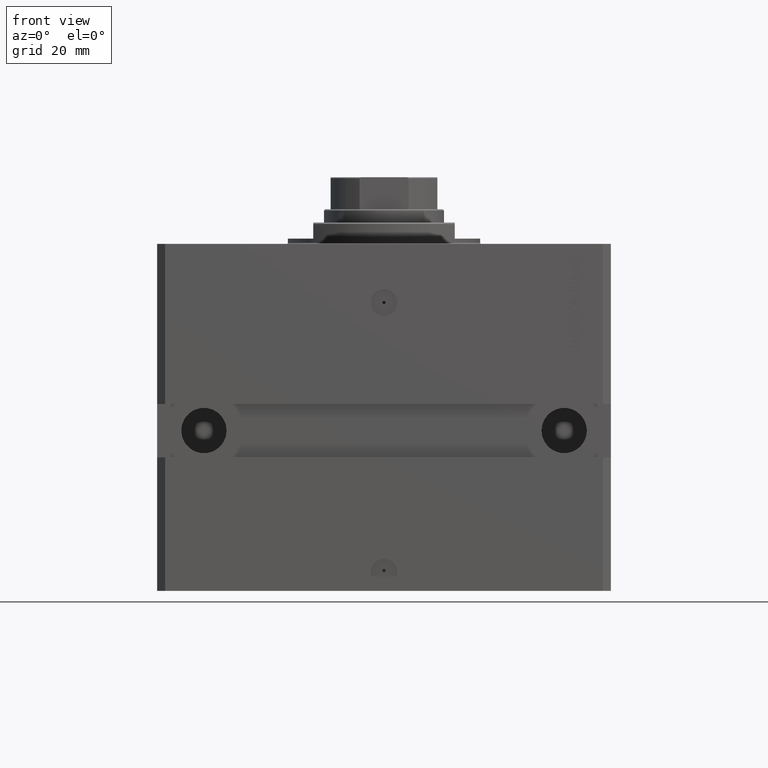
[diagram: clean part render]
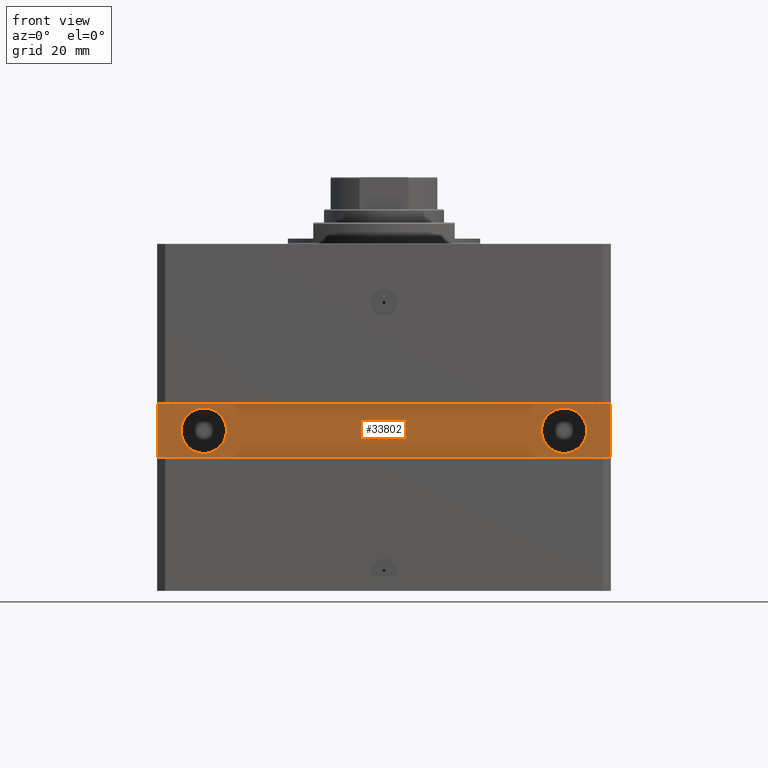
[diagram: same view with one face highlighted and labeled with its STEP entity id]
A machine part, front view. The second image highlights one B-rep face of the part: STEP entity #33802.
In plain terms, the highlighted planar face has unit normal (0, -1, 0).
Its self-contained STEP definition (entity closure, byte-faithful):
#497 = EDGE_CURVE ( 'NONE', #9817, #36663, #9129, .T. ) ;
#593 = CIRCLE ( 'NONE', #19380, 8.499999999999992895 ) ;
#1431 = CIRCLE ( 'NONE', #12387, 8.500000000000000000 ) ;
#1476 = ORIENTED_EDGE ( 'NONE', *, *, #34533, .T. ) ;
#2795 = EDGE_LOOP ( 'NONE', ( #27452, #44176 ) ) ;
#3204 = DIRECTION ( 'NONE',  ( 1.000000000000000000, 1.632680918566406300E-16, 0.000000000000000000 ) ) ;
#3458 = CARTESIAN_POINT ( 'NONE',  ( -75.99999999999997158, -65.00000000000001421, -70.00000000000001421 ) ) ;
#5183 = VECTOR ( 'NONE', #16247, 1000.000000000000000 ) ;
#5869 = CARTESIAN_POINT ( 'NONE',  ( 85.00000000000001421, -64.99999999999998579, -59.99999999999998579 ) ) ;
#7351 = FACE_BOUND ( 'NONE', #2795, .T. ) ;
#8047 = VERTEX_POINT ( 'NONE', #5869 ) ;
#8646 = ORIENTED_EDGE ( 'NONE', *, *, #42151, .F. ) ;
#9129 = LINE ( 'NONE', #39733, #5183 ) ;
#9817 = VERTEX_POINT ( 'NONE', #41481 ) ;
#10960 = CARTESIAN_POINT ( 'NONE',  ( 59.00000000000003553, -64.99999999999998579, -70.00000000000000000 ) ) ;
#12088 = AXIS2_PLACEMENT_3D ( 'NONE', #48359, #29514, #14817 ) ;
#12387 = AXIS2_PLACEMENT_3D ( 'NONE', #15362, #33503, #48438 ) ;
#12577 = CARTESIAN_POINT ( 'NONE',  ( 76.00000000000002842, -64.99999999999998579, -70.00000000000000000 ) ) ;
#12810 = DIRECTION ( 'NONE',  ( 1.000000000000000000, 0.000000000000000000, 0.000000000000000000 ) ) ;
#14817 = DIRECTION ( 'NONE',  ( 1.000000000000000000, 0.000000000000000000, 0.000000000000000000 ) ) ;
#14964 = FACE_BOUND ( 'NONE', #33545, .T. ) ;
#15362 = CARTESIAN_POINT ( 'NONE',  ( -67.49999999999997158, -65.00000000000001421, -70.00000000000001421 ) ) ;
#16247 = DIRECTION ( 'NONE',  ( 0.000000000000000000, 0.000000000000000000, -1.000000000000000000 ) ) ;
#16509 = DIRECTION ( 'NONE',  ( 1.041232428609250764E-16, -1.000000000000000000, -6.162975822039154730E-33 ) ) ;
#16988 = CARTESIAN_POINT ( 'NONE',  ( 67.50000000000002842, -64.99999999999998579, -70.00000000000000000 ) ) ;
#17611 = EDGE_CURVE ( 'NONE', #34072, #8047, #22954, .T. ) ;
#18197 = AXIS2_PLACEMENT_3D ( 'NONE', #19110, #37485, #3204 ) ;
#19110 = CARTESIAN_POINT ( 'NONE',  ( 1.084072457370145048E-14, -65.00000000000000000, 0.000000000000000000 ) ) ;
#19380 = AXIS2_PLACEMENT_3D ( 'NONE', #16988, #24828, #32664 ) ;
#19423 = EDGE_CURVE ( 'NONE', #42078, #22278, #593, .T. ) ;
#20182 = ORIENTED_EDGE ( 'NONE', *, *, #26291, .T. ) ;
#20711 = CIRCLE ( 'NONE', #12088, 8.500000000000000000 ) ;
#20810 = LINE ( 'NONE', #27432, #32855 ) ;
#22278 = VERTEX_POINT ( 'NONE', #10960 ) ;
#22742 = LINE ( 'NONE', #36297, #25463 ) ;
#22954 = LINE ( 'NONE', #33743, #42770 ) ;
#24016 = EDGE_CURVE ( 'NONE', #42158, #34737, #1431, .T. ) ;
#24683 = CARTESIAN_POINT ( 'NONE',  ( -58.99999999999997868, -65.00000000000001421, -70.00000000000001421 ) ) ;
#24828 = DIRECTION ( 'NONE',  ( 1.041232428609250764E-16, -1.000000000000000000, -6.162975822039154730E-33 ) ) ;
#25463 = VECTOR ( 'NONE', #32395, 1000.000000000000000 ) ;
#26291 = EDGE_CURVE ( 'NONE', #8047, #9817, #20810, .T. ) ;
#27432 = CARTESIAN_POINT ( 'NONE',  ( 85.00000000000001421, -64.99999999999998579, -59.99999999999998579 ) ) ;
#27452 = ORIENTED_EDGE ( 'NONE', *, *, #35743, .F. ) ;
#29514 = DIRECTION ( 'NONE',  ( 1.101411730780568590E-16, -1.000000000000000000, 0.000000000000000000 ) ) ;
#31084 = AXIS2_PLACEMENT_3D ( 'NONE', #46125, #16509, #12810 ) ;
#32395 = DIRECTION ( 'NONE',  ( 1.000000000000000000, 1.632680918566406300E-16, 0.000000000000000000 ) ) ;
#32664 = DIRECTION ( 'NONE',  ( 1.000000000000000000, 0.000000000000000000, 0.000000000000000000 ) ) ;
#32855 = VECTOR ( 'NONE', #39180, 1000.000000000000000 ) ;
#33503 = DIRECTION ( 'NONE',  ( 1.101411730780568590E-16, -1.000000000000000000, 0.000000000000000000 ) ) ;
#33545 = EDGE_LOOP ( 'NONE', ( #35583, #8646 ) ) ;
#33743 = CARTESIAN_POINT ( 'NONE',  ( 85.00000000000001421, -64.99999999999998579, -80.00000000000001421 ) ) ;
#33802 = ADVANCED_FACE ( 'NONE', ( #14964, #7351, #40688 ), #34046, .T. ) ;
#33853 = ORIENTED_EDGE ( 'NONE', *, *, #17611, .T. ) ;
#34046 = PLANE ( 'NONE',  #18197 ) ;
#34072 = VERTEX_POINT ( 'NONE', #46221 ) ;
#34533 = EDGE_CURVE ( 'NONE', #36663, #34072, #22742, .T. ) ;
#34737 = VERTEX_POINT ( 'NONE', #24683 ) ;
#35583 = ORIENTED_EDGE ( 'NONE', *, *, #19423, .F. ) ;
#35743 = EDGE_CURVE ( 'NONE', #34737, #42158, #20711, .T. ) ;
#36297 = CARTESIAN_POINT ( 'NONE',  ( -85.00000000000001421, -65.00000000000001421, -80.00000000000001421 ) ) ;
#36663 = VERTEX_POINT ( 'NONE', #44912 ) ;
#37332 = CIRCLE ( 'NONE', #31084, 8.499999999999992895 ) ;
#37485 = DIRECTION ( 'NONE',  ( 1.632680918566406300E-16, -1.000000000000000000, 0.000000000000000000 ) ) ;
#37654 = DIRECTION ( 'NONE',  ( 0.000000000000000000, 0.000000000000000000, 1.000000000000000000 ) ) ;
#39180 = DIRECTION ( 'NONE',  ( -1.000000000000000000, -1.632680918566406300E-16, -2.449021377849609204E-16 ) ) ;
#39733 = CARTESIAN_POINT ( 'NONE',  ( -85.00000000000001421, -65.00000000000001421, -60.00000000000002842 ) ) ;
#40688 = FACE_OUTER_BOUND ( 'NONE', #43365, .T. ) ;
#41481 = CARTESIAN_POINT ( 'NONE',  ( -85.00000000000001421, -65.00000000000001421, -60.00000000000002842 ) ) ;
#42078 = VERTEX_POINT ( 'NONE', #12577 ) ;
#42151 = EDGE_CURVE ( 'NONE', #22278, #42078, #37332, .T. ) ;
#42158 = VERTEX_POINT ( 'NONE', #3458 ) ;
#42696 = ORIENTED_EDGE ( 'NONE', *, *, #497, .T. ) ;
#42770 = VECTOR ( 'NONE', #37654, 1000.000000000000000 ) ;
#43365 = EDGE_LOOP ( 'NONE', ( #1476, #33853, #20182, #42696 ) ) ;
#44176 = ORIENTED_EDGE ( 'NONE', *, *, #24016, .F. ) ;
#44912 = CARTESIAN_POINT ( 'NONE',  ( -85.00000000000001421, -65.00000000000001421, -80.00000000000001421 ) ) ;
#46125 = CARTESIAN_POINT ( 'NONE',  ( 67.50000000000002842, -64.99999999999998579, -70.00000000000000000 ) ) ;
#46221 = CARTESIAN_POINT ( 'NONE',  ( 85.00000000000001421, -64.99999999999998579, -80.00000000000001421 ) ) ;
#48359 = CARTESIAN_POINT ( 'NONE',  ( -67.49999999999997158, -65.00000000000001421, -70.00000000000001421 ) ) ;
#48438 = DIRECTION ( 'NONE',  ( 1.000000000000000000, 0.000000000000000000, 0.000000000000000000 ) ) ;